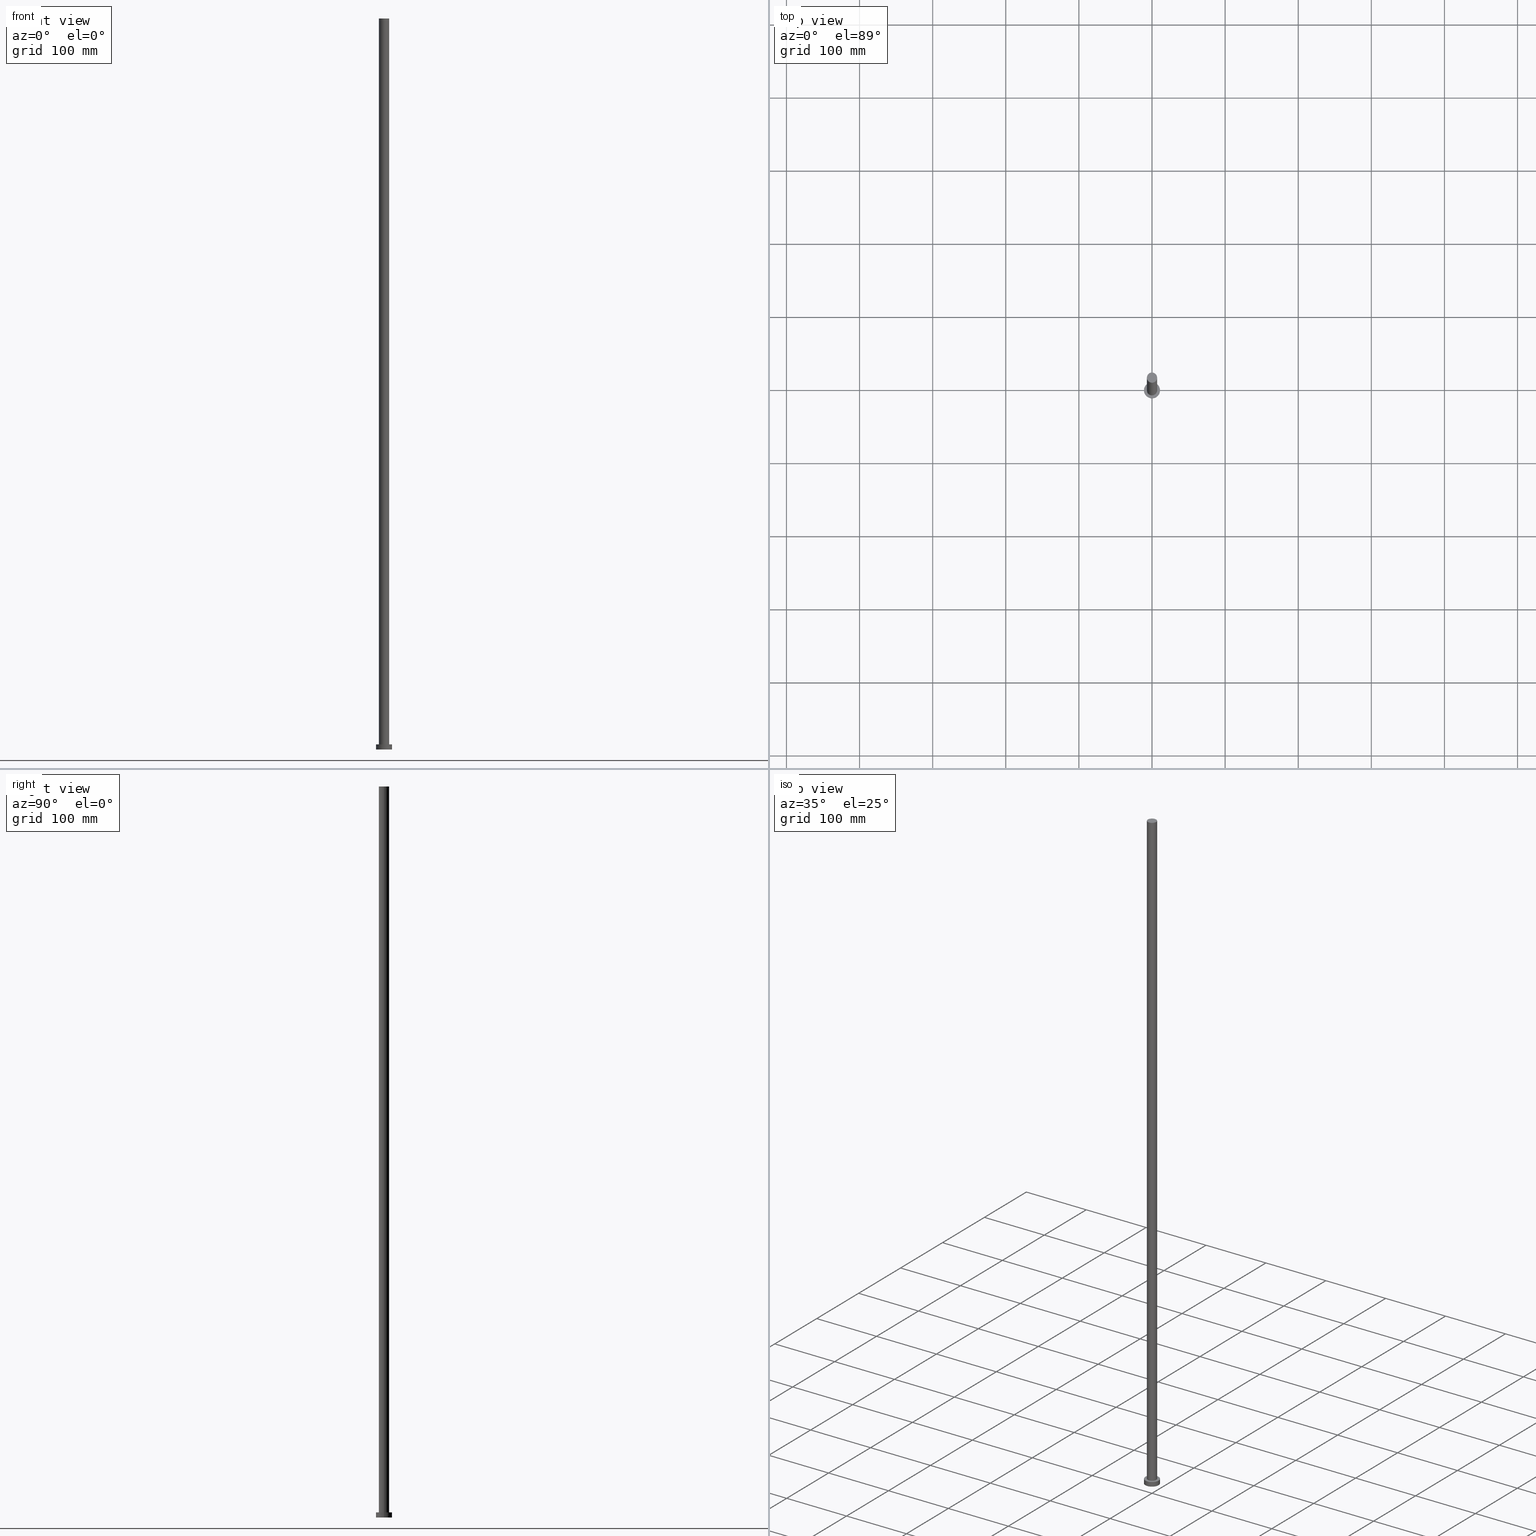
[diagram: canonical four-view strip — front | top / right | iso, engineering-drawing reading convention]
A machine part, canonical four-view strip (front | top / right | iso — engineering-drawing reading convention). The complete STEP part file that produces these views, byte-faithful:
ISO-10303-21;
HEADER;
FILE_DESCRIPTION (( 'STEP AP203' ),
    '1' );
FILE_NAME ('f496.STEP',
    '2023-02-12T10:45:18',
    ( '' ),
    ( '' ),
    'SwSTEP 2.0',
    'SolidWorks 2019',
    '' );
FILE_SCHEMA (( 'CONFIG_CONTROL_DESIGN' ));
ENDSEC;

DATA;
#1 = DIRECTION ( 'NONE',  ( 1.000000000000000000, 0.000000000000000000, -0.000000000000000000 ) ) ;
#2 = DIRECTION ( 'NONE',  ( -0.000000000000000000, -0.000000000000000000, -1.000000000000000000 ) ) ;
#3 = VECTOR ( 'NONE', #138, 1000.000000000000000 ) ;
#4 = VERTEX_POINT ( 'NONE', #80 ) ;
#5 = DATE_TIME_ROLE ( 'creation_date' ) ;
#6 = DIRECTION ( 'NONE',  ( 1.000000000000000000, 0.000000000000000000, 0.000000000000000000 ) ) ;
#7 = EDGE_CURVE ( 'NONE', #76, #4, #108, .T. ) ;
#8 = ORIENTED_EDGE ( 'NONE', *, *, #193, .T. ) ;
#9 = APPROVAL_STATUS ( 'not_yet_approved' ) ;
#10 = ORIENTED_EDGE ( 'NONE', *, *, #247, .F. ) ;
#11 = ORIENTED_EDGE ( 'NONE', *, *, #100, .T. ) ;
#12 = APPROVAL_DATE_TIME ( #101, #53 ) ;
#13 = DIRECTION ( 'NONE',  ( -0.000000000000000000, -0.000000000000000000, -1.000000000000000000 ) ) ;
#14 = CIRCLE ( 'NONE', #230, 7.000000000000000888 ) ;
#15 = DIRECTION ( 'NONE',  ( 1.000000000000000000, 0.000000000000000000, 0.000000000000000000 ) ) ;
#16 = FACE_OUTER_BOUND ( 'NONE', #206, .T. ) ;
#17 = DIRECTION ( 'NONE',  ( -0.000000000000000000, -0.000000000000000000, -1.000000000000000000 ) ) ;
#18 = APPLICATION_PROTOCOL_DEFINITION ( 'international standard', 'config_control_design', 1994, #106 ) ;
#19 = CIRCLE ( 'NONE', #216, 7.000000000000000888 ) ;
#20 = DIRECTION ( 'NONE',  ( 1.000000000000000000, 0.000000000000000000, 0.000000000000000000 ) ) ;
#21 = DESIGN_CONTEXT ( 'detailed design', #106, 'design' ) ;
#22 = DIRECTION ( 'NONE',  ( 1.000000000000000000, 0.000000000000000000, -0.000000000000000000 ) ) ;
#23 = DIRECTION ( 'NONE',  ( 0.000000000000000000, 0.000000000000000000, 1.000000000000000000 ) ) ;
#24 = CC_DESIGN_DATE_AND_TIME_ASSIGNMENT ( #184, #5, ( #148 ) ) ;
#25 = APPROVAL_STATUS ( 'not_yet_approved' ) ;
#26 = EDGE_CURVE ( 'NONE', #94, #116, #90, .T. ) ;
#27 = CC_DESIGN_APPROVAL ( #91, ( #148 ) ) ;
#28 = AXIS2_PLACEMENT_3D ( 'NONE', #44, #175, #107 ) ;
#29 = AXIS2_PLACEMENT_3D ( 'NONE', #113, #143, #6 ) ;
#30 = ORIENTED_EDGE ( 'NONE', *, *, #178, .F. ) ;
#31 = ORIENTED_EDGE ( 'NONE', *, *, #242, .T. ) ;
#32 = SHAPE_DEFINITION_REPRESENTATION ( #109, #167 ) ;
#33 = ORIENTED_EDGE ( 'NONE', *, *, #242, .F. ) ;
#34 = CIRCLE ( 'NONE', #177, 7.000000000000000888 ) ;
#35 = APPLICATION_PROTOCOL_DEFINITION ( 'international standard', 'config_control_design', 1994, #201 ) ;
#36 = EDGE_CURVE ( 'NONE', #116, #94, #14, .T. ) ;
#37 = DIRECTION ( 'NONE',  ( 1.000000000000000000, 0.000000000000000000, 0.000000000000000000 ) ) ;
#38 = FACE_OUTER_BOUND ( 'NONE', #48, .T. ) ;
#39 = MECHANICAL_CONTEXT ( 'NONE', #201, 'mechanical' ) ;
#40 = FACE_OUTER_BOUND ( 'NONE', #168, .T. ) ;
#41 = COORDINATED_UNIVERSAL_TIME_OFFSET ( 1, 0, .AHEAD. ) ;
#42 = FACE_BOUND ( 'NONE', #133, .T. ) ;
#43 =( LENGTH_UNIT ( ) NAMED_UNIT ( * ) SI_UNIT ( .MILLI., .METRE. ) );
#44 = CARTESIAN_POINT ( 'NONE',  ( 0.000000000000000000, 0.000000000000000000, 0.000000000000000000 ) ) ;
#45 = CIRCLE ( 'NONE', #73, 11.00000000000000000 ) ;
#46 = DATE_AND_TIME ( #183, #190 ) ;
#47 = PERSON_AND_ORGANIZATION_ROLE ( 'creator' ) ;
#48 = EDGE_LOOP ( 'NONE', ( #97, #132 ) ) ;
#49 = COORDINATED_UNIVERSAL_TIME_OFFSET ( 1, 0, .AHEAD. ) ;
#50 = ORIENTED_EDGE ( 'NONE', *, *, #203, .F. ) ;
#51 = DIRECTION ( 'NONE',  ( 0.000000000000000000, 0.000000000000000000, 1.000000000000000000 ) ) ;
#52 = ORIENTED_EDGE ( 'NONE', *, *, #26, .F. ) ;
#53 = APPROVAL ( #209, 'NEUR�EN�' ) ;
#54 = LOCAL_TIME ( 11, 45, 18.00000000000000000, #170 ) ;
#55 = ADVANCED_FACE ( 'NONE', ( #16 ), #86, .T. ) ;
#56 = CALENDAR_DATE ( 2023, 12, 2 ) ;
#57 = CALENDAR_DATE ( 2023, 12, 2 ) ;
#58 = APPROVAL_PERSON_ORGANIZATION ( #163, #53, #246 ) ;
#59 = CARTESIAN_POINT ( 'NONE',  ( 0.000000000000000000, 0.000000000000000000, 1000.000000000000000 ) ) ;
#60 = CARTESIAN_POINT ( 'NONE',  ( 0.000000000000000000, 0.000000000000000000, 7.000000000000000000 ) ) ;
#61 = CC_DESIGN_DATE_AND_TIME_ASSIGNMENT ( #99, #189, ( #126 ) ) ;
#62 = CYLINDRICAL_SURFACE ( 'NONE', #156, 7.000000000000000888 ) ;
#63 =( NAMED_UNIT ( * ) PLANE_ANGLE_UNIT ( ) SI_UNIT ( $, .RADIAN. ) );
#64 = DIRECTION ( 'NONE',  ( -0.000000000000000000, -0.000000000000000000, -1.000000000000000000 ) ) ;
#65 = PERSON_AND_ORGANIZATION_ROLE ( 'classification_officer' ) ;
#66 = CARTESIAN_POINT ( 'NONE',  ( 0.000000000000000000, 0.000000000000000000, 7.000000000000000000 ) ) ;
#67 = CARTESIAN_POINT ( 'NONE',  ( 11.00000000000000000, 1.347111479062088405E-15, 7.000000000000000000 ) ) ;
#68 = CYLINDRICAL_SURFACE ( 'NONE', #92, 7.000000000000000888 ) ;
#69 = VECTOR ( 'NONE', #2, 1000.000000000000000 ) ;
#70 = APPROVAL_DATE_TIME ( #46, #91 ) ;
#71 = DIRECTION ( 'NONE',  ( -1.000000000000000000, 0.000000000000000000, 0.000000000000000000 ) ) ;
#72 = CC_DESIGN_PERSON_AND_ORGANIZATION_ASSIGNMENT ( #150, #84, ( #225 ) ) ;
#73 = AXIS2_PLACEMENT_3D ( 'NONE', #241, #51, #114 ) ;
#74 = EDGE_CURVE ( 'NONE', #146, #227, #192, .T. ) ;
#75 = DATE_AND_TIME ( #207, #54 ) ;
#76 = VERTEX_POINT ( 'NONE', #125 ) ;
#77 = APPROVAL_ROLE ( '' ) ;
#78 = ORIENTED_EDGE ( 'NONE', *, *, #178, .T. ) ;
#79 = PERSON_AND_ORGANIZATION ( #161, #165 ) ;
#80 = CARTESIAN_POINT ( 'NONE',  ( 11.00000000000000000, 1.347111479062088405E-15, 7.000000000000000000 ) ) ;
#81 = ADVANCED_FACE ( 'NONE', ( #40 ), #200, .T. ) ;
#82 = DIRECTION ( 'NONE',  ( -0.000000000000000000, -0.000000000000000000, -1.000000000000000000 ) ) ;
#83 = DIRECTION ( 'NONE',  ( 0.000000000000000000, 0.000000000000000000, 1.000000000000000000 ) ) ;
#84 = PERSON_AND_ORGANIZATION_ROLE ( 'design_supplier' ) ;
#85 = DIRECTION ( 'NONE',  ( 0.000000000000000000, 0.000000000000000000, 1.000000000000000000 ) ) ;
#86 = CYLINDRICAL_SURFACE ( 'NONE', #174, 11.00000000000000000 ) ;
#87 = DIRECTION ( 'NONE',  ( 0.000000000000000000, 0.000000000000000000, 1.000000000000000000 ) ) ;
#88 = ADVANCED_FACE ( 'NONE', ( #38 ), #157, .F. ) ;
#89 = AXIS2_PLACEMENT_3D ( 'NONE', #151, #212, #37 ) ;
#90 = CIRCLE ( 'NONE', #129, 7.000000000000000888 ) ;
#91 = APPROVAL ( #25, 'NEUR�EN�' ) ;
#92 = AXIS2_PLACEMENT_3D ( 'NONE', #220, #243, #71 ) ;
#93 = DIRECTION ( 'NONE',  ( 1.000000000000000000, 0.000000000000000000, 0.000000000000000000 ) ) ;
#94 = VERTEX_POINT ( 'NONE', #239 ) ;
#95 = MANIFOLD_SOLID_BREP ( 'P�idat vysunut�m3', #208 ) ;
#96 = APPROVAL_PERSON_ORGANIZATION ( #79, #166, #77 ) ;
#97 = ORIENTED_EDGE ( 'NONE', *, *, #153, .F. ) ;
#98 = EDGE_LOOP ( 'NONE', ( #50, #33, #11, #117 ) ) ;
#99 = DATE_AND_TIME ( #56, #115 ) ;
#100 = EDGE_CURVE ( 'NONE', #185, #94, #122, .T. ) ;
#101 = DATE_AND_TIME ( #57, #162 ) ;
#102 = PERSON_AND_ORGANIZATION ( #161, #165 ) ;
#103 = DIRECTION ( 'NONE',  ( -1.000000000000000000, 0.000000000000000000, 0.000000000000000000 ) ) ;
#104 = DIRECTION ( 'NONE',  ( -1.000000000000000000, 0.000000000000000000, 0.000000000000000000 ) ) ;
#105 = PERSON_AND_ORGANIZATION ( #161, #165 ) ;
#106 = APPLICATION_CONTEXT ( 'configuration controlled 3d designs of mechanical parts and assemblies' ) ;
#107 = DIRECTION ( 'NONE',  ( 1.000000000000000000, 0.000000000000000000, 0.000000000000000000 ) ) ;
#108 = CIRCLE ( 'NONE', #199, 11.00000000000000000 ) ;
#109 = PRODUCT_DEFINITION_SHAPE ( 'NONE', 'NONE',  #148 ) ;
#110 = DIRECTION ( 'NONE',  ( 1.000000000000000000, 0.000000000000000000, -0.000000000000000000 ) ) ;
#111 = COORDINATED_UNIVERSAL_TIME_OFFSET ( 1, 0, .AHEAD. ) ;
#112 = ORIENTED_EDGE ( 'NONE', *, *, #7, .T. ) ;
#113 = CARTESIAN_POINT ( 'NONE',  ( 0.000000000000000000, 0.000000000000000000, 0.000000000000000000 ) ) ;
#114 = DIRECTION ( 'NONE',  ( 1.000000000000000000, 0.000000000000000000, 0.000000000000000000 ) ) ;
#115 = LOCAL_TIME ( 11, 45, 18.00000000000000000, #137 ) ;
#116 = VERTEX_POINT ( 'NONE', #237 ) ;
#117 = ORIENTED_EDGE ( 'NONE', *, *, #26, .T. ) ;
#118 = ORIENTED_EDGE ( 'NONE', *, *, #36, .F. ) ;
#119 = AXIS2_PLACEMENT_3D ( 'NONE', #66, #140, #1 ) ;
#120 = EDGE_CURVE ( 'NONE', #4, #146, #124, .T. ) ;
#121 = PERSON_AND_ORGANIZATION_ROLE ( 'design_owner' ) ;
#122 = LINE ( 'NONE', #179, #69 ) ;
#123 = DIRECTION ( 'NONE',  ( 0.000000000000000000, 0.000000000000000000, 1.000000000000000000 ) ) ;
#124 = LINE ( 'NONE', #67, #3 ) ;
#125 = CARTESIAN_POINT ( 'NONE',  ( -11.00000000000000000, 0.000000000000000000, 7.000000000000000000 ) ) ;
#126 = SECURITY_CLASSIFICATION ( '', '', #154 ) ;
#127 = CIRCLE ( 'NONE', #29, 11.00000000000000000 ) ;
#128 = CC_DESIGN_PERSON_AND_ORGANIZATION_ASSIGNMENT ( #173, #251, ( #225 ) ) ;
#129 = AXIS2_PLACEMENT_3D ( 'NONE', #60, #85, #20 ) ;
#130 = ADVANCED_FACE ( 'NONE', ( #198 ), #68, .T. ) ;
#131 = ORIENTED_EDGE ( 'NONE', *, *, #120, .T. ) ;
#132 = ORIENTED_EDGE ( 'NONE', *, *, #74, .F. ) ;
#133 = EDGE_LOOP ( 'NONE', ( #52, #118 ) ) ;
#134 = CARTESIAN_POINT ( 'NONE',  ( 0.000000000000000000, 0.000000000000000000, 7.000000000000000000 ) ) ;
#135 = CARTESIAN_POINT ( 'NONE',  ( 0.000000000000000000, 0.000000000000000000, 1000.000000000000000 ) ) ;
#136 = CARTESIAN_POINT ( 'NONE',  ( 0.000000000000000000, 0.000000000000000000, 7.000000000000000000 ) ) ;
#137 = COORDINATED_UNIVERSAL_TIME_OFFSET ( 1, 0, .AHEAD. ) ;
#138 = DIRECTION ( 'NONE',  ( -0.000000000000000000, -0.000000000000000000, -1.000000000000000000 ) ) ;
#139 = CC_DESIGN_APPROVAL ( #166, ( #126 ) ) ;
#140 = DIRECTION ( 'NONE',  ( 0.000000000000000000, 0.000000000000000000, 1.000000000000000000 ) ) ;
#141 = CARTESIAN_POINT ( 'NONE',  ( 11.00000000000000000, 1.347111479062088405E-15, 0.000000000000000000 ) ) ;
#142 = ORIENTED_EDGE ( 'NONE', *, *, #7, .F. ) ;
#143 = DIRECTION ( 'NONE',  ( 0.000000000000000000, 0.000000000000000000, 1.000000000000000000 ) ) ;
#144 = ORIENTED_EDGE ( 'NONE', *, *, #100, .F. ) ;
#145 = PRODUCT_RELATED_PRODUCT_CATEGORY ( 'detail', '', ( #217 ) ) ;
#146 = VERTEX_POINT ( 'NONE', #141 ) ;
#147 = APPROVAL_DATE_TIME ( #75, #166 ) ;
#148 = PRODUCT_DEFINITION ( 'NEZN�M�', '', #225, #21 ) ;
#149 = ORIENTED_EDGE ( 'NONE', *, *, #153, .T. ) ;
#150 = PERSON_AND_ORGANIZATION ( #161, #165 ) ;
#151 = CARTESIAN_POINT ( 'NONE',  ( 0.000000000000000000, 0.000000000000000000, 0.000000000000000000 ) ) ;
#152 = DIRECTION ( 'NONE',  ( 0.000000000000000000, 0.000000000000000000, 1.000000000000000000 ) ) ;
#153 = EDGE_CURVE ( 'NONE', #227, #146, #127, .T. ) ;
#154 = SECURITY_CLASSIFICATION_LEVEL ( 'unclassified' ) ;
#155 = DIRECTION ( 'NONE',  ( 0.000000000000000000, 0.000000000000000000, 1.000000000000000000 ) ) ;
#156 = AXIS2_PLACEMENT_3D ( 'NONE', #135, #17, #104 ) ;
#157 = PLANE ( 'NONE',  #226 ) ;
#158 = UNCERTAINTY_MEASURE_WITH_UNIT (LENGTH_MEASURE( 1.000000000000000082E-05 ), #43, 'distance_accuracy_value', 'NONE');
#159 = CARTESIAN_POINT ( 'NONE',  ( 7.000000000000000888, 8.572527594031474176E-16, 1000.000000000000000 ) ) ;
#160 = AXIS2_PLACEMENT_3D ( 'NONE', #234, #64, #213 ) ;
#161 = PERSON ( 'NEUR�EN�', 'NEUR�EN�', 'NEUR�EN�', ('NEUR�EN�'), ('NEUR�EN�'), ('NEUR�EN�') ) ;
#162 = LOCAL_TIME ( 11, 45, 18.00000000000000000, #41 ) ;
#163 = PERSON_AND_ORGANIZATION ( #161, #165 ) ;
#164 = CARTESIAN_POINT ( 'NONE',  ( -7.000000000000000888, 0.000000000000000000, 1000.000000000000000 ) ) ;
#165 = ORGANIZATION ( 'NEUR�EN�', 'NEUR�EN�', '' ) ;
#166 = APPROVAL ( #9, 'NEUR�EN�' ) ;
#167 = ADVANCED_BREP_SHAPE_REPRESENTATION ( 'f496', ( #95, #89 ), #202 ) ;
#168 = EDGE_LOOP ( 'NONE', ( #249, #142, #180, #149 ) ) ;
#169 = CC_DESIGN_PERSON_AND_ORGANIZATION_ASSIGNMENT ( #204, #47, ( #148 ) ) ;
#170 = COORDINATED_UNIVERSAL_TIME_OFFSET ( 1, 0, .AHEAD. ) ;
#171 = CC_DESIGN_SECURITY_CLASSIFICATION ( #126, ( #225 ) ) ;
#172 = ORIENTED_EDGE ( 'NONE', *, *, #193, .F. ) ;
#173 = PERSON_AND_ORGANIZATION ( #161, #165 ) ;
#174 = AXIS2_PLACEMENT_3D ( 'NONE', #136, #13, #103 ) ;
#175 = DIRECTION ( 'NONE',  ( 0.000000000000000000, 0.000000000000000000, 1.000000000000000000 ) ) ;
#176 = CARTESIAN_POINT ( 'NONE',  ( 0.000000000000000000, 0.000000000000000000, 0.000000000000000000 ) ) ;
#177 = AXIS2_PLACEMENT_3D ( 'NONE', #223, #87, #93 ) ;
#178 = EDGE_CURVE ( 'NONE', #188, #185, #34, .T. ) ;
#179 = CARTESIAN_POINT ( 'NONE',  ( -7.000000000000000888, 0.000000000000000000, 1000.000000000000000 ) ) ;
#180 = ORIENTED_EDGE ( 'NONE', *, *, #247, .T. ) ;
#181 = CC_DESIGN_PERSON_AND_ORGANIZATION_ASSIGNMENT ( #235, #65, ( #126 ) ) ;
#182 = CC_DESIGN_APPROVAL ( #53, ( #225 ) ) ;
#183 = CALENDAR_DATE ( 2023, 12, 2 ) ;
#184 = DATE_AND_TIME ( #205, #248 ) ;
#185 = VERTEX_POINT ( 'NONE', #164 ) ;
#186 = AXIS2_PLACEMENT_3D ( 'NONE', #194, #152, #22 ) ;
#187 = ORIENTED_EDGE ( 'NONE', *, *, #74, .T. ) ;
#188 = VERTEX_POINT ( 'NONE', #159 ) ;
#189 = DATE_TIME_ROLE ( 'classification_date' ) ;
#190 = LOCAL_TIME ( 11, 45, 18.00000000000000000, #111 ) ;
#191 = LINE ( 'NONE', #252, #231 ) ;
#192 = CIRCLE ( 'NONE', #28, 11.00000000000000000 ) ;
#193 = EDGE_CURVE ( 'NONE', #4, #76, #45, .T. ) ;
#194 = CARTESIAN_POINT ( 'NONE',  ( 0.000000000000000000, 0.000000000000000000, 1000.000000000000000 ) ) ;
#195 = PLANE ( 'NONE',  #186 ) ;
#196 = DIRECTION ( 'NONE',  ( 1.000000000000000000, 0.000000000000000000, 0.000000000000000000 ) ) ;
#197 = FACE_OUTER_BOUND ( 'NONE', #98, .T. ) ;
#198 = FACE_OUTER_BOUND ( 'NONE', #229, .T. ) ;
#199 = AXIS2_PLACEMENT_3D ( 'NONE', #215, #155, #219 ) ;
#200 = CYLINDRICAL_SURFACE ( 'NONE', #160, 11.00000000000000000 ) ;
#201 = APPLICATION_CONTEXT ( 'configuration controlled 3d designs of mechanical parts and assemblies' ) ;
#202 =( GEOMETRIC_REPRESENTATION_CONTEXT ( 3 ) GLOBAL_UNCERTAINTY_ASSIGNED_CONTEXT ( ( #158 ) ) GLOBAL_UNIT_ASSIGNED_CONTEXT ( ( #43, #63, #211 ) ) REPRESENTATION_CONTEXT ( 'NONE', 'WORKASPACE' ) );
#203 = EDGE_CURVE ( 'NONE', #188, #116, #191, .T. ) ;
#204 = PERSON_AND_ORGANIZATION ( #161, #165 ) ;
#205 = CALENDAR_DATE ( 2023, 12, 2 ) ;
#206 = EDGE_LOOP ( 'NONE', ( #172, #131, #187, #10 ) ) ;
#207 = CALENDAR_DATE ( 2023, 12, 2 ) ;
#208 = CLOSED_SHELL ( 'NONE', ( #130, #55, #81, #255, #88, #244, #210 ) ) ;
#209 = APPROVAL_STATUS ( 'not_yet_approved' ) ;
#210 = ADVANCED_FACE ( 'NONE', ( #232 ), #195, .T. ) ;
#211 =( NAMED_UNIT ( * ) SI_UNIT ( $, .STERADIAN. ) SOLID_ANGLE_UNIT ( ) );
#212 = DIRECTION ( 'NONE',  ( 0.000000000000000000, 0.000000000000000000, 1.000000000000000000 ) ) ;
#213 = DIRECTION ( 'NONE',  ( -1.000000000000000000, 0.000000000000000000, 0.000000000000000000 ) ) ;
#214 = CARTESIAN_POINT ( 'NONE',  ( -11.00000000000000000, 0.000000000000000000, 0.000000000000000000 ) ) ;
#215 = CARTESIAN_POINT ( 'NONE',  ( 0.000000000000000000, 0.000000000000000000, 7.000000000000000000 ) ) ;
#216 = AXIS2_PLACEMENT_3D ( 'NONE', #59, #123, #15 ) ;
#217 = PRODUCT ( 'f496', 'f496', '', ( #39 ) ) ;
#218 = CARTESIAN_POINT ( 'NONE',  ( -11.00000000000000000, 0.000000000000000000, 7.000000000000000000 ) ) ;
#219 = DIRECTION ( 'NONE',  ( 1.000000000000000000, 0.000000000000000000, 0.000000000000000000 ) ) ;
#220 = CARTESIAN_POINT ( 'NONE',  ( 0.000000000000000000, 0.000000000000000000, 1000.000000000000000 ) ) ;
#221 = EDGE_LOOP ( 'NONE', ( #112, #8 ) ) ;
#222 = VECTOR ( 'NONE', #236, 1000.000000000000000 ) ;
#223 = CARTESIAN_POINT ( 'NONE',  ( 0.000000000000000000, 0.000000000000000000, 1000.000000000000000 ) ) ;
#224 = ORIENTED_EDGE ( 'NONE', *, *, #36, .T. ) ;
#225 = PRODUCT_DEFINITION_FORMATION_WITH_SPECIFIED_SOURCE ( 'LIBOVOLN�', '', #217, .NOT_KNOWN. ) ;
#226 = AXIS2_PLACEMENT_3D ( 'NONE', #176, #23, #110 ) ;
#227 = VERTEX_POINT ( 'NONE', #214 ) ;
#228 = EDGE_LOOP ( 'NONE', ( #31, #78 ) ) ;
#229 = EDGE_LOOP ( 'NONE', ( #30, #245, #224, #144 ) ) ;
#230 = AXIS2_PLACEMENT_3D ( 'NONE', #134, #83, #196 ) ;
#231 = VECTOR ( 'NONE', #82, 1000.000000000000000 ) ;
#232 = FACE_OUTER_BOUND ( 'NONE', #228, .T. ) ;
#233 = FACE_OUTER_BOUND ( 'NONE', #221, .T. ) ;
#234 = CARTESIAN_POINT ( 'NONE',  ( 0.000000000000000000, 0.000000000000000000, 7.000000000000000000 ) ) ;
#235 = PERSON_AND_ORGANIZATION ( #161, #165 ) ;
#236 = DIRECTION ( 'NONE',  ( -0.000000000000000000, -0.000000000000000000, -1.000000000000000000 ) ) ;
#237 = CARTESIAN_POINT ( 'NONE',  ( 7.000000000000000888, 8.572527594031474176E-16, 7.000000000000000000 ) ) ;
#238 = PLANE ( 'NONE',  #119 ) ;
#239 = CARTESIAN_POINT ( 'NONE',  ( -7.000000000000000888, 0.000000000000000000, 7.000000000000000000 ) ) ;
#240 = APPROVAL_ROLE ( '' ) ;
#241 = CARTESIAN_POINT ( 'NONE',  ( 0.000000000000000000, 0.000000000000000000, 7.000000000000000000 ) ) ;
#242 = EDGE_CURVE ( 'NONE', #185, #188, #19, .T. ) ;
#243 = DIRECTION ( 'NONE',  ( -0.000000000000000000, -0.000000000000000000, -1.000000000000000000 ) ) ;
#244 = ADVANCED_FACE ( 'NONE', ( #197 ), #62, .T. ) ;
#245 = ORIENTED_EDGE ( 'NONE', *, *, #203, .T. ) ;
#246 = APPROVAL_ROLE ( '' ) ;
#247 = EDGE_CURVE ( 'NONE', #76, #227, #254, .T. ) ;
#248 = LOCAL_TIME ( 11, 45, 18.00000000000000000, #49 ) ;
#249 = ORIENTED_EDGE ( 'NONE', *, *, #120, .F. ) ;
#250 = CC_DESIGN_PERSON_AND_ORGANIZATION_ASSIGNMENT ( #102, #121, ( #217 ) ) ;
#251 = PERSON_AND_ORGANIZATION_ROLE ( 'creator' ) ;
#252 = CARTESIAN_POINT ( 'NONE',  ( 7.000000000000000888, 8.572527594031474176E-16, 1000.000000000000000 ) ) ;
#253 = APPROVAL_PERSON_ORGANIZATION ( #105, #91, #240 ) ;
#254 = LINE ( 'NONE', #218, #222 ) ;
#255 = ADVANCED_FACE ( 'NONE', ( #42, #233 ), #238, .T. ) ;
ENDSEC;
END-ISO-10303-21;
